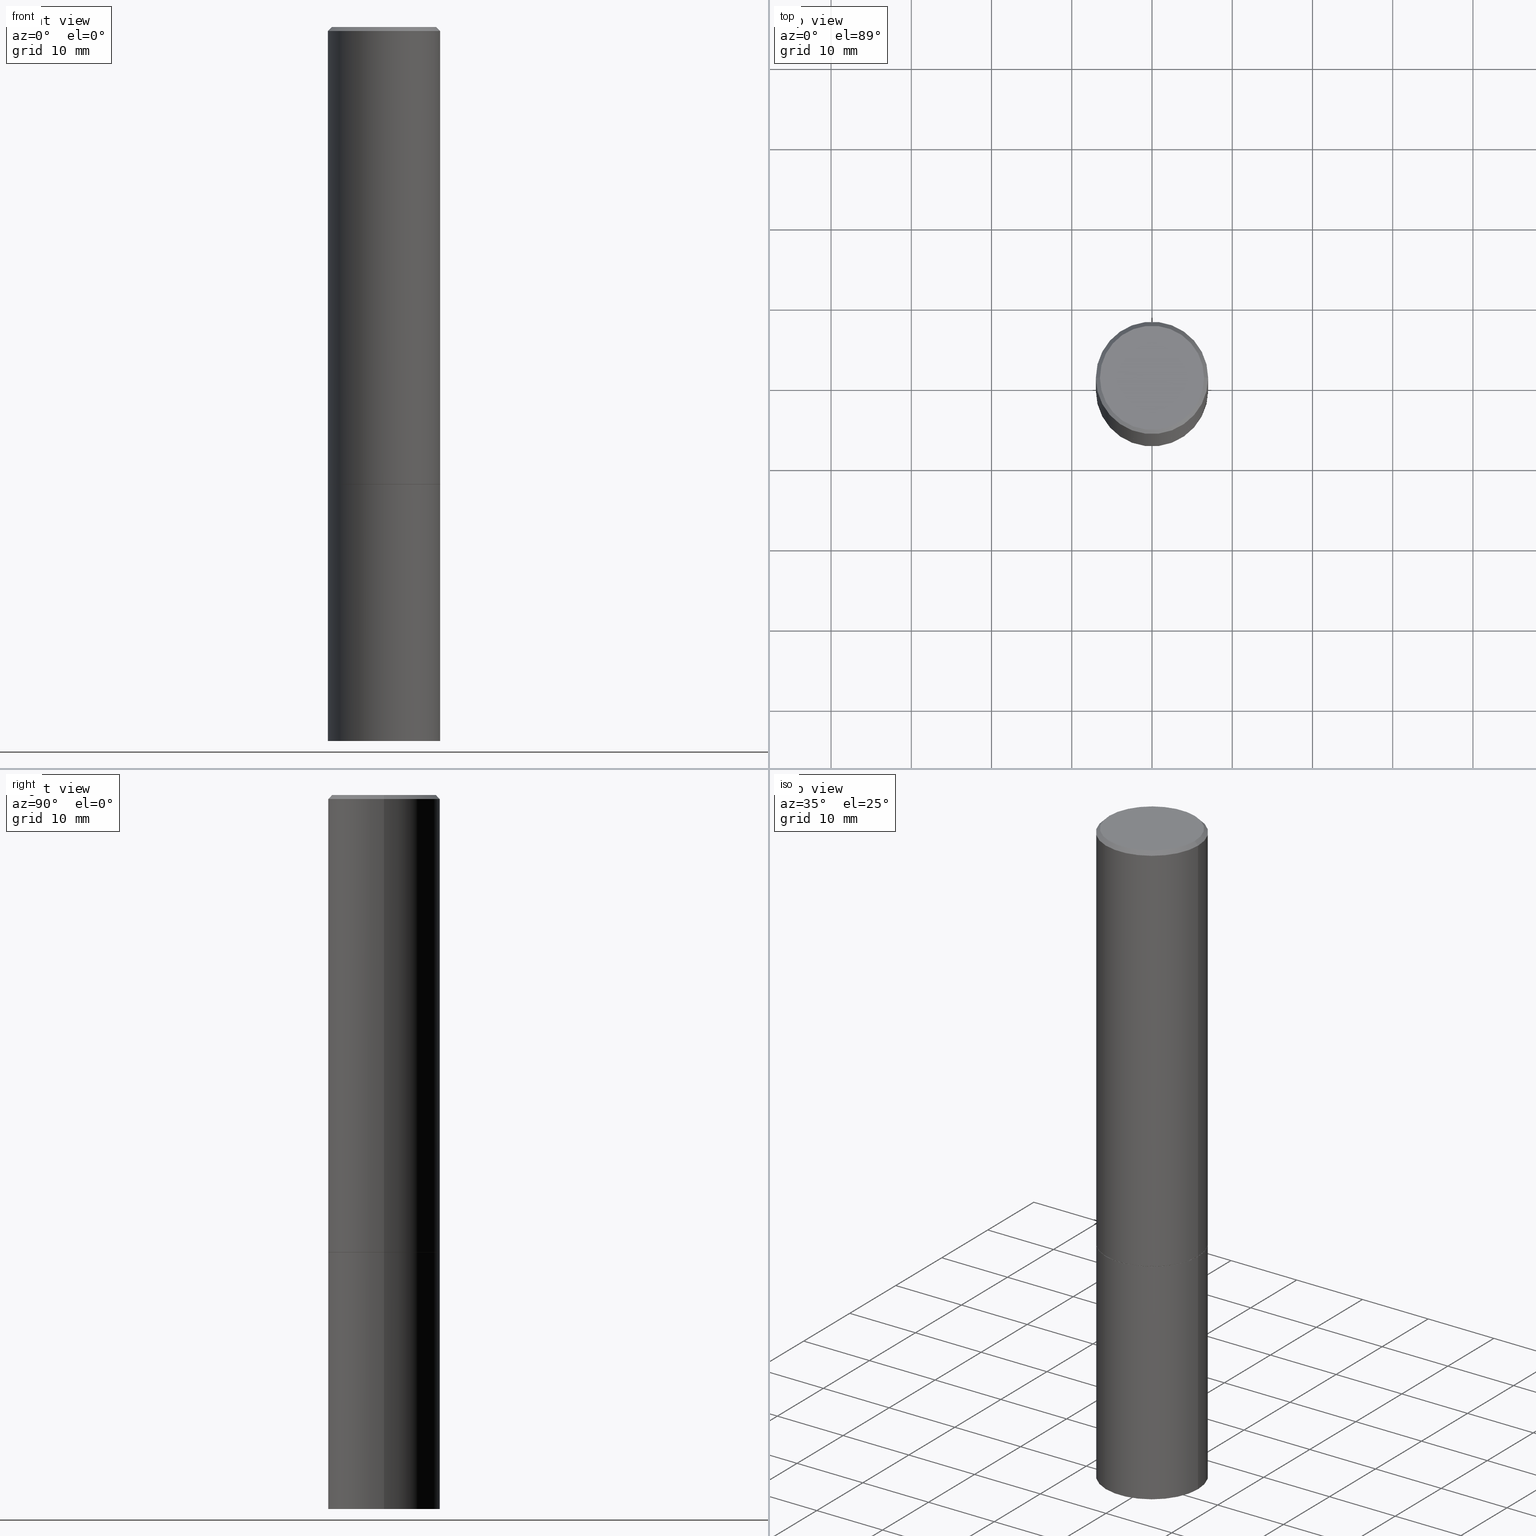
[diagram: canonical four-view strip — front | top / right | iso, engineering-drawing reading convention]
A machine part, canonical four-view strip (front | top / right | iso — engineering-drawing reading convention). The complete STEP part file that produces these views, byte-faithful:
ISO-10303-21;
HEADER;
FILE_DESCRIPTION (( 'STEP AP203' ),
    '1' );
FILE_NAME ('48666.STEP',
    '2024-02-28T13:25:30',
    ( '' ),
    ( '' ),
    'SwSTEP 2.0',
    'SolidWorks 2023',
    '' );
FILE_SCHEMA (( 'CONFIG_CONTROL_DESIGN' ));
ENDSEC;

DATA;
#1 = AXIS2_PLACEMENT_3D ( 'NONE', #223, #328, #361 ) ;
#2 = ADVANCED_FACE ( 'NONE', ( #219 ), #320, .T. ) ;
#3 = DIRECTION ( 'NONE',  ( 1.000000000000000000, -6.982962677686267499E-15, 4.876176775795935793E-29 ) ) ;
#4 = CARTESIAN_POINT ( 'NONE',  ( 0.2755999999999997896, -1.960582874962695828E-15, -0.02000000000000005940 ) ) ;
#5 = ORIENTED_EDGE ( 'NONE', *, *, #233, .T. ) ;
#6 = DIRECTION ( 'NONE',  ( 1.000000000000000000, 0.000000000000000000, 0.000000000000000000 ) ) ;
#7 = CIRCLE ( 'NONE', #258, 0.2555999999999997163 ) ;
#8 = FACE_OUTER_BOUND ( 'NONE', #187, .T. ) ;
#9 = DIRECTION ( 'NONE',  ( -1.000000000000000000, 6.982962677686267499E-15, 0.000000000000000000 ) ) ;
#10 = DIRECTION ( 'NONE',  ( -2.445468806185136597E-29, 3.491481338843145583E-15, 1.000000000000000000 ) ) ;
#11 = DIRECTION ( 'NONE',  ( 1.000000000000000000, -6.982962677686267499E-15, 4.876201967404967742E-29 ) ) ;
#12 = ORIENTED_EDGE ( 'NONE', *, *, #26, .T. ) ;
#13 = APPROVAL_STATUS ( 'not_yet_approved' ) ;
#14 = CARTESIAN_POINT ( 'NONE',  ( 0.000000000000000000, 0.000000000000000000, 0.000000000000000000 ) ) ;
#15 = ORIENTED_EDGE ( 'NONE', *, *, #141, .F. ) ;
#16 = DIRECTION ( 'NONE',  ( 1.000000000000000000, -6.982962677686267499E-15, 4.876176775795935793E-29 ) ) ;
#17 = ORIENTED_EDGE ( 'NONE', *, *, #103, .F. ) ;
#18 = DIRECTION ( 'NONE',  ( -2.445468806185136597E-29, 3.491481338843145583E-15, 1.000000000000000000 ) ) ;
#19 = ORIENTED_EDGE ( 'NONE', *, *, #247, .T. ) ;
#20 = CALENDAR_DATE ( 2024, 28, 2 ) ;
#21 = CC_DESIGN_APPROVAL ( #134, ( #334 ) ) ;
#22 = PERSON_AND_ORGANIZATION ( #196, #34 ) ;
#23 = DIRECTION ( 'NONE',  ( -2.445468806185136597E-29, 3.491481338843145583E-15, 1.000000000000000000 ) ) ;
#24 = APPLICATION_CONTEXT ( 'configuration controlled 3d designs of mechanical parts and assemblies' ) ;
#25 = CIRCLE ( 'NONE', #275, 0.2756000000000000116 ) ;
#26 = EDGE_CURVE ( 'NONE', #65, #71, #142, .T. ) ;
#27 = AXIS2_PLACEMENT_3D ( 'NONE', #246, #148, #87 ) ;
#28 = CARTESIAN_POINT ( 'NONE',  ( 0.2746000000000000107, -9.752754823790549702E-15, -2.244099999999999540 ) ) ;
#29 = CARTESIAN_POINT ( 'NONE',  ( 1.924504513970420545E-15, 0.2755999999999877992, -3.503900000000000681 ) ) ;
#30 = CARTESIAN_POINT ( 'NONE',  ( 5.487876547960063631E-29, -7.835233272497900762E-15, -2.244099999999999540 ) ) ;
#31 = DIRECTION ( 'NONE',  ( 1.000000000000000000, -6.982962677686267499E-15, 4.876201967404967742E-29 ) ) ;
#32 = CARTESIAN_POINT ( 'NONE',  ( 5.487876547960063631E-29, -7.835233272497900762E-15, -2.244099999999999540 ) ) ;
#33 = CARTESIAN_POINT ( 'NONE',  ( 0.2756000000000000116, -9.759737786468235716E-15, -2.244099999999999540 ) ) ;
#34 = ORGANIZATION ( 'UNSPECIFIED', 'UNSPECIFIED', '' ) ;
#35 = CARTESIAN_POINT ( 'NONE',  ( 0.000000000000000000, 0.000000000000000000, 0.000000000000000000 ) ) ;
#36 =( NAMED_UNIT ( * ) PLANE_ANGLE_UNIT ( ) SI_UNIT ( $, .RADIAN. ) );
#37 = CARTESIAN_POINT ( 'NONE',  ( -0.2755999999999997896, 1.854674887193470472E-15, -0.02000000000000005940 ) ) ;
#38 = ORIENTED_EDGE ( 'NONE', *, *, #350, .F. ) ;
#39 = EDGE_CURVE ( 'NONE', #295, #97, #199, .T. ) ;
#40 = VERTEX_POINT ( 'NONE', #121 ) ;
#41 = APPROVAL_STATUS ( 'not_yet_approved' ) ;
#42 = CIRCLE ( 'NONE', #1, 0.2755999999999997896 ) ;
#43 = ORIENTED_EDGE ( 'NONE', *, *, #254, .T. ) ;
#44 = CALENDAR_DATE ( 2024, 28, 2 ) ;
#45 = EDGE_LOOP ( 'NONE', ( #221, #329 ) ) ;
#46 = DATE_TIME_ROLE ( 'creation_date' ) ;
#47 = CARTESIAN_POINT ( 'NONE',  ( 0.2755999999999999006, -1.924504513970334560E-15, 1.343874319409359427E-29 ) ) ;
#48 = AXIS2_PLACEMENT_3D ( 'NONE', #73, #358, #107 ) ;
#49 = PRODUCT_RELATED_PRODUCT_CATEGORY ( 'detail', '', ( #156 ) ) ;
#50 = CARTESIAN_POINT ( 'NONE',  ( 8.568678149992099474E-29, -1.223380146317249786E-14, -3.503899999999999793 ) ) ;
#51 = CIRCLE ( 'NONE', #162, 0.2756000000000000116 ) ;
#52 = CIRCLE ( 'NONE', #313, 0.2756000000000000671 ) ;
#53 = AXIS2_PLACEMENT_3D ( 'NONE', #349, #240, #11 ) ;
#54 = PLANE ( 'NONE',  #215 ) ;
#55 = CARTESIAN_POINT ( 'NONE',  ( -0.2756000000000000116, -8.076261588080363510E-15, -3.503899999999999793 ) ) ;
#56 = DIRECTION ( 'NONE',  ( 1.000000000000000000, -6.982962677686265922E-15, 0.000000000000000000 ) ) ;
#57 = EDGE_CURVE ( 'NONE', #40, #155, #52, .T. ) ;
#58 = DIRECTION ( 'NONE',  ( 1.000000000000000000, -6.982962677686267499E-15, 4.876176775795935793E-29 ) ) ;
#59 = DIRECTION ( 'NONE',  ( -2.445468806185136597E-29, 3.491481338843145583E-15, 1.000000000000000000 ) ) ;
#60 = CC_DESIGN_APPROVAL ( #185, ( #78 ) ) ;
#61 = CARTESIAN_POINT ( 'NONE',  ( -0.2555999999999997163, 1.819760073805039218E-15, 8.537024980188219272E-18 ) ) ;
#62 = CC_DESIGN_PERSON_AND_ORGANIZATION_ASSIGNMENT ( #360, #72, ( #334 ) ) ;
#63 = ORIENTED_EDGE ( 'NONE', *, *, #163, .F. ) ;
#64 = CARTESIAN_POINT ( 'NONE',  ( -2.087702828670439639E-46, 2.980686340760894400E-32, 8.537024980200822558E-18 ) ) ;
#65 = VERTEX_POINT ( 'NONE', #61 ) ;
#66 = CARTESIAN_POINT ( 'NONE',  ( -0.2755999999999999006, 1.958255779754835406E-15, -1.355658510874251446E-29 ) ) ;
#67 = EDGE_LOOP ( 'NONE', ( #184, #362, #38, #181 ) ) ;
#68 = APPROVAL_DATE_TIME ( #276, #139 ) ;
#69 = CARTESIAN_POINT ( 'NONE',  ( 0.2555999999999997163, -1.857063081596548453E-15, 8.537024980213556806E-18 ) ) ;
#70 = AXIS2_PLACEMENT_3D ( 'NONE', #213, #319, #180 ) ;
#71 = VERTEX_POINT ( 'NONE', #266 ) ;
#72 = PERSON_AND_ORGANIZATION_ROLE ( 'creator' ) ;
#73 = CARTESIAN_POINT ( 'NONE',  ( 5.485431079153878028E-29, -7.831741791159057755E-15, -2.243099999999999206 ) ) ;
#74 = ADVANCED_FACE ( 'NONE', ( #8 ), #117, .F. ) ;
#75 = ORIENTED_EDGE ( 'NONE', *, *, #232, .T. ) ;
#76 = AXIS2_PLACEMENT_3D ( 'NONE', #30, #172, #204 ) ;
#77 = EDGE_CURVE ( 'NONE', #65, #255, #111, .T. ) ;
#78 = PRODUCT_DEFINITION_FORMATION_WITH_SPECIFIED_SOURCE ( 'ANY', '', #156, .NOT_KNOWN. ) ;
#79 = FACE_OUTER_BOUND ( 'NONE', #248, .T. ) ;
#80 = DIRECTION ( 'NONE',  ( -2.445468806185136597E-29, 3.491481338843145583E-15, 1.000000000000000000 ) ) ;
#81 = LINE ( 'NONE', #229, #206 ) ;
#82 = AXIS2_PLACEMENT_3D ( 'NONE', #14, #23, #16 ) ;
#83 = DIRECTION ( 'NONE',  ( 0.000000000000000000, 0.000000000000000000, 1.000000000000000000 ) ) ;
#84 = DIRECTION ( 'NONE',  ( 2.438088387897960049E-29, -3.491481338843145188E-15, -1.000000000000000000 ) ) ;
#85 = MANIFOLD_SOLID_BREP ( 'Body-Move/Copy2[2]', #282 ) ;
#86 =( LENGTH_UNIT ( ) NAMED_UNIT ( * ) SI_UNIT ( $, .METRE. ) );
#87 = DIRECTION ( 'NONE',  ( 1.000000000000000000, -6.982962677686265922E-15, 0.000000000000000000 ) ) ;
#88 = CARTESIAN_POINT ( 'NONE',  ( 5.487876547960063631E-29, -7.835233272497900762E-15, -2.244099999999999540 ) ) ;
#89 = EDGE_CURVE ( 'NONE', #97, #340, #94, .T. ) ;
#90 = DIRECTION ( 'NONE',  ( 1.000000000000000000, -6.982962677686264344E-15, 0.000000000000000000 ) ) ;
#91 = ORIENTED_EDGE ( 'NONE', *, *, #89, .T. ) ;
#92 = PERSON_AND_ORGANIZATION ( #196, #34 ) ;
#93 = CIRCLE ( 'NONE', #321, 0.2756000000000000116 ) ;
#94 = LINE ( 'NONE', #314, #267 ) ;
#95 = ORIENTED_EDGE ( 'NONE', *, *, #141, .T. ) ;
#96 = APPROVAL_ROLE ( '' ) ;
#97 = VERTEX_POINT ( 'NONE', #271 ) ;
#98 = EDGE_CURVE ( 'NONE', #351, #324, #337, .T. ) ;
#99 = PERSON_AND_ORGANIZATION ( #196, #34 ) ;
#100 = DIRECTION ( 'NONE',  ( 0.7071067811865473507, -7.319954787623256045E-15, -0.7071067811865476838 ) ) ;
#101 = ORIENTED_EDGE ( 'NONE', *, *, #198, .F. ) ;
#102 = APPLICATION_PROTOCOL_DEFINITION ( 'international standard', 'config_control_design', 1994, #24 ) ;
#103 = EDGE_CURVE ( 'NONE', #255, #65, #7, .T. ) ;
#104 = DIRECTION ( 'NONE',  ( -2.445468806185136597E-29, 3.491481338843145583E-15, 1.000000000000000000 ) ) ;
#105 = AXIS2_PLACEMENT_3D ( 'NONE', #286, #348, #208 ) ;
#106 = EDGE_LOOP ( 'NONE', ( #359, #322 ) ) ;
#107 = DIRECTION ( 'NONE',  ( 1.000000000000000000, -6.982962677686264344E-15, 0.000000000000000000 ) ) ;
#108 = EDGE_CURVE ( 'NONE', #324, #351, #145, .T. ) ;
#109 = AXIS2_PLACEMENT_3D ( 'NONE', #212, #244, #260 ) ;
#110 = VECTOR ( 'NONE', #207, 39.37007874015748143 ) ;
#111 = CIRCLE ( 'NONE', #53, 0.2555999999999997163 ) ;
#112 = CARTESIAN_POINT ( 'NONE',  ( -0.2746000000000000107, -5.884082920100665181E-15, -2.244099999999999540 ) ) ;
#113 = CC_DESIGN_PERSON_AND_ORGANIZATION_ASSIGNMENT ( #281, #298, ( #310 ) ) ;
#114 = CARTESIAN_POINT ( 'NONE',  ( 5.485431079153878028E-29, -7.831741791159057755E-15, -2.243099999999999206 ) ) ;
#115 = ORIENTED_EDGE ( 'NONE', *, *, #312, .T. ) ;
#116 = CYLINDRICAL_SURFACE ( 'NONE', #335, 0.2755999999999999006 ) ;
#117 = PLANE ( 'NONE',  #177 ) ;
#118 = CARTESIAN_POINT ( 'NONE',  ( 0.2756000000000000671, -9.756246305129392709E-15, -2.243099999999999206 ) ) ;
#119 = EDGE_LOOP ( 'NONE', ( #5, #357, #268, #272 ) ) ;
#120 = FACE_OUTER_BOUND ( 'NONE', #106, .T. ) ;
#121 = CARTESIAN_POINT ( 'NONE',  ( -0.2756000000000000671, -1.992529929213121965E-15, -2.243099999999999206 ) ) ;
#122 = ADVANCED_FACE ( 'NONE', ( #269 ), #342, .T. ) ;
#123 = VERTEX_POINT ( 'NONE', #4 ) ;
#124 = SHAPE_DEFINITION_REPRESENTATION ( #304, #188 ) ;
#125 = CARTESIAN_POINT ( 'NONE',  ( -0.2756000000000000116, -8.076261588080363510E-15, -2.244099999999999540 ) ) ;
#126 = EDGE_LOOP ( 'NONE', ( #305, #251, #12, #19 ) ) ;
#127 = ORIENTED_EDGE ( 'NONE', *, *, #98, .T. ) ;
#128 = DATE_AND_TIME ( #44, #132 ) ;
#129 = ORIENTED_EDGE ( 'NONE', *, *, #312, .F. ) ;
#130 = COORDINATED_UNIVERSAL_TIME_OFFSET ( 5, 0, .BEHIND. ) ;
#131 = LOCAL_TIME ( 8, 25, 30.00000000000000000, #182 ) ;
#132 = LOCAL_TIME ( 8, 25, 30.00000000000000000, #302 ) ;
#133 = APPROVAL_DATE_TIME ( #273, #185 ) ;
#134 = APPROVAL ( #13, 'UNSPECIFIED' ) ;
#135 = DIRECTION ( 'NONE',  ( 1.000000000000000000, -6.982962677686267499E-15, 0.000000000000000000 ) ) ;
#136 = LOCAL_TIME ( 8, 25, 30.00000000000000000, #222 ) ;
#137 = ADVANCED_FACE ( 'NONE', ( #140 ), #54, .T. ) ;
#138 = CARTESIAN_POINT ( 'NONE',  ( 0.2746000000000000107, -9.752754823790549702E-15, -2.244099999999999540 ) ) ;
#139 = APPROVAL ( #296, 'UNSPECIFIED' ) ;
#140 = FACE_OUTER_BOUND ( 'NONE', #45, .T. ) ;
#141 = EDGE_CURVE ( 'NONE', #227, #340, #51, .T. ) ;
#142 = LINE ( 'NONE', #37, #110 ) ;
#143 = FACE_OUTER_BOUND ( 'NONE', #278, .T. ) ;
#144 = DIRECTION ( 'NONE',  ( -2.445468806185136597E-29, 3.491481338843145583E-15, 1.000000000000000000 ) ) ;
#145 = CIRCLE ( 'NONE', #231, 0.2746000000000000107 ) ;
#146 = DIRECTION ( 'NONE',  ( -2.445468806185136597E-29, 3.491481338843145583E-15, 1.000000000000000000 ) ) ;
#147 = PERSON_AND_ORGANIZATION_ROLE ( 'design_owner' ) ;
#148 = DIRECTION ( 'NONE',  ( -2.445468806185136597E-29, 3.491481338843145583E-15, 1.000000000000000000 ) ) ;
#149 = EDGE_LOOP ( 'NONE', ( #297, #224, #91, #15 ) ) ;
#150 = PERSON_AND_ORGANIZATION ( #196, #34 ) ;
#151 = ORIENTED_EDGE ( 'NONE', *, *, #57, .F. ) ;
#152 = DATE_TIME_ROLE ( 'classification_date' ) ;
#153 =( GEOMETRIC_REPRESENTATION_CONTEXT ( 3 ) GLOBAL_UNCERTAINTY_ASSIGNED_CONTEXT ( ( #347 ) ) GLOBAL_UNIT_ASSIGNED_CONTEXT ( ( #341, #36, #236 ) ) REPRESENTATION_CONTEXT ( 'NONE', 'WORKASPACE' ) );
#154 = ADVANCED_FACE ( 'NONE', ( #175 ), #365, .T. ) ;
#155 = VERTEX_POINT ( 'NONE', #118 ) ;
#156 = PRODUCT ( '48666', '48666', '', ( #179 ) ) ;
#157 = CALENDAR_DATE ( 2024, 28, 2 ) ;
#158 = ORIENTED_EDGE ( 'NONE', *, *, #108, .T. ) ;
#159 = APPROVAL_DATE_TIME ( #128, #134 ) ;
#160 = COORDINATED_UNIVERSAL_TIME_OFFSET ( 5, 0, .BEHIND. ) ;
#161 = DIRECTION ( 'NONE',  ( -2.445468806185136877E-29, 3.491481338843145188E-15, 1.000000000000000000 ) ) ;
#162 = AXIS2_PLACEMENT_3D ( 'NONE', #318, #290, #56 ) ;
#163 = EDGE_CURVE ( 'NONE', #324, #40, #173, .T. ) ;
#164 = APPROVAL_PERSON_ORGANIZATION ( #22, #134, #352 ) ;
#165 = CC_DESIGN_PERSON_AND_ORGANIZATION_ASSIGNMENT ( #92, #330, ( #78 ) ) ;
#166 = ADVANCED_FACE ( 'NONE', ( #289 ), #237, .F. ) ;
#167 = PLANE ( 'NONE',  #76 ) ;
#168 = CLOSED_SHELL ( 'NONE', ( #122, #137, #166, #210 ) ) ;
#169 = VECTOR ( 'NONE', #161, 39.37007874015748143 ) ;
#170 = LINE ( 'NONE', #28, #190 ) ;
#171 = DIRECTION ( 'NONE',  ( -1.000000000000000000, 6.982962677686265922E-15, -4.876176775795935793E-29 ) ) ;
#172 = DIRECTION ( 'NONE',  ( -2.438088387897960049E-29, 3.491481338843145188E-15, 1.000000000000000000 ) ) ;
#173 = LINE ( 'NONE', #112, #311 ) ;
#174 = DIRECTION ( 'NONE',  ( 0.7071067811865474617, -2.468850131082256666E-15, 0.7071067811865474617 ) ) ;
#175 = FACE_OUTER_BOUND ( 'NONE', #332, .T. ) ;
#176 = EDGE_CURVE ( 'NONE', #295, #227, #81, .T. ) ;
#177 = AXIS2_PLACEMENT_3D ( 'NONE', #239, #205, #217 ) ;
#178 = CC_DESIGN_APPROVAL ( #139, ( #310 ) ) ;
#179 = MECHANICAL_CONTEXT ( 'NONE', #265, 'mechanical' ) ;
#180 = DIRECTION ( 'NONE',  ( -1.000000000000000000, 6.982962677686265922E-15, -4.876176775795935793E-29 ) ) ;
#181 = ORIENTED_EDGE ( 'NONE', *, *, #89, .F. ) ;
#182 = COORDINATED_UNIVERSAL_TIME_OFFSET ( 5, 0, .BEHIND. ) ;
#183 = DIRECTION ( 'NONE',  ( -2.445468806185136597E-29, 3.491481338843145583E-15, 1.000000000000000000 ) ) ;
#184 = ORIENTED_EDGE ( 'NONE', *, *, #277, .T. ) ;
#185 = APPROVAL ( #41, 'UNSPECIFIED' ) ;
#186 = APPROVAL_ROLE ( '' ) ;
#187 = EDGE_LOOP ( 'NONE', ( #355, #327 ) ) ;
#188 = ADVANCED_BREP_SHAPE_REPRESENTATION ( '48666', ( #211, #85, #202 ), #153 ) ;
#189 = DIMENSIONAL_EXPONENTS ( 1.000000000000000000, 0.000000000000000000, 0.000000000000000000, 0.000000000000000000, 0.000000000000000000, 0.000000000000000000, 0.000000000000000000 ) ;
#190 = VECTOR ( 'NONE', #174, 39.37007874015748854 ) ;
#191 = CYLINDRICAL_SURFACE ( 'NONE', #285, 0.2755999999999999006 ) ;
#192 = EDGE_LOOP ( 'NONE', ( #63, #158, #115, #151 ) ) ;
#193 = CALENDAR_DATE ( 2024, 28, 2 ) ;
#194 = DIRECTION ( 'NONE',  ( 1.000000000000000000, -6.982962677686267499E-15, 4.876176775795935793E-29 ) ) ;
#195 = ORIENTED_EDGE ( 'NONE', *, *, #233, .F. ) ;
#196 = PERSON ( 'UNSPECIFIED', 'UNSPECIFIED', 'UNSPECIFIED', ('UNSPECIFIED'), ('UNSPECIFIED'), ('UNSPECIFIED') ) ;
#197 = FACE_OUTER_BOUND ( 'NONE', #149, .T. ) ;
#198 = EDGE_CURVE ( 'NONE', #40, #71, #220, .T. ) ;
#199 = CIRCLE ( 'NONE', #27, 0.2756000000000000116 ) ;
#200 = AXIS2_PLACEMENT_3D ( 'NONE', #323, #316, #344 ) ;
#201 = DIRECTION ( 'NONE',  ( -2.445468806185136597E-29, 3.491481338843145583E-15, 1.000000000000000000 ) ) ;
#202 = AXIS2_PLACEMENT_3D ( 'NONE', #238, #83, #6 ) ;
#203 = LOCAL_TIME ( 8, 25, 30.00000000000000000, #130 ) ;
#204 = DIRECTION ( 'NONE',  ( 1.000000000000000000, -6.982962677686265922E-15, 4.876176775795935793E-29 ) ) ;
#205 = DIRECTION ( 'NONE',  ( 2.438088387897960049E-29, -3.491481338843145188E-15, -1.000000000000000000 ) ) ;
#206 = VECTOR ( 'NONE', #256, 39.37007874015748143 ) ;
#207 = DIRECTION ( 'NONE',  ( -0.7071067811865473507, 2.468850131082255088E-15, -0.7071067811865476838 ) ) ;
#208 = DIRECTION ( 'NONE',  ( 1.000000000000000000, -6.982962677686269866E-15, 0.000000000000000000 ) ) ;
#209 = DIRECTION ( 'NONE',  ( 1.000000000000000000, -6.982962677686269866E-15, 0.000000000000000000 ) ) ;
#210 = ADVANCED_FACE ( 'NONE', ( #197 ), #306, .T. ) ;
#211 = MANIFOLD_SOLID_BREP ( 'Body-Move/Copy2[1]', #168 ) ;
#212 = CARTESIAN_POINT ( 'NONE',  ( 4.890937612370288047E-31, -6.982962677686311331E-17, -0.02000000000000005940 ) ) ;
#213 = CARTESIAN_POINT ( 'NONE',  ( 1.924504513970389780E-15, 0.2755999999999921846, -2.244100000000000428 ) ) ;
#214 = ORIENTED_EDGE ( 'NONE', *, *, #247, .F. ) ;
#215 = AXIS2_PLACEMENT_3D ( 'NONE', #29, #84, #171 ) ;
#216 = CALENDAR_DATE ( 2024, 28, 2 ) ;
#217 = DIRECTION ( 'NONE',  ( -1.000000000000000000, 6.982962677686265922E-15, -4.876176775795935793E-29 ) ) ;
#218 = CC_DESIGN_PERSON_AND_ORGANIZATION_ASSIGNMENT ( #241, #147, ( #156 ) ) ;
#219 = FACE_OUTER_BOUND ( 'NONE', #192, .T. ) ;
#220 = LINE ( 'NONE', #66, #287 ) ;
#221 = ORIENTED_EDGE ( 'NONE', *, *, #277, .F. ) ;
#222 = COORDINATED_UNIVERSAL_TIME_OFFSET ( 5, 0, .BEHIND. ) ;
#223 = CARTESIAN_POINT ( 'NONE',  ( 4.890937612370288047E-31, -6.982962677686311331E-17, -0.02000000000000005940 ) ) ;
#224 = ORIENTED_EDGE ( 'NONE', *, *, #39, .T. ) ;
#225 = DATE_AND_TIME ( #157, #234 ) ;
#226 = CARTESIAN_POINT ( 'NONE',  ( 4.890937612370288047E-31, -6.982962677686311331E-17, -0.02000000000000005940 ) ) ;
#227 = VERTEX_POINT ( 'NONE', #125 ) ;
#228 = LINE ( 'NONE', #326, #283 ) ;
#229 = CARTESIAN_POINT ( 'NONE',  ( -0.2756000000000000116, 1.958255779754836195E-15, -1.355658510874252007E-29 ) ) ;
#230 = AXIS2_PLACEMENT_3D ( 'NONE', #294, #146, #353 ) ;
#231 = AXIS2_PLACEMENT_3D ( 'NONE', #32, #346, #209 ) ;
#232 = EDGE_CURVE ( 'NONE', #155, #123, #250, .T. ) ;
#233 = EDGE_CURVE ( 'NONE', #155, #40, #301, .T. ) ;
#234 = LOCAL_TIME ( 8, 25, 30.00000000000000000, #160 ) ;
#235 = EDGE_CURVE ( 'NONE', #255, #123, #228, .T. ) ;
#236 =( NAMED_UNIT ( * ) SI_UNIT ( $, .STERADIAN. ) SOLID_ANGLE_UNIT ( ) );
#237 = PLANE ( 'NONE',  #70 ) ;
#238 = CARTESIAN_POINT ( 'NONE',  ( 0.000000000000000000, 0.000000000000000000, 0.000000000000000000 ) ) ;
#239 = CARTESIAN_POINT ( 'NONE',  ( 1.784845260416607569E-15, 0.2555999999999997163, -8.881541177182066117E-16 ) ) ;
#240 = DIRECTION ( 'NONE',  ( -2.445468806185136597E-29, 3.491481338843145583E-15, 1.000000000000000000 ) ) ;
#241 = PERSON_AND_ORGANIZATION ( #196, #34 ) ;
#242 = DIRECTION ( 'NONE',  ( -0.7071067811865474617, 7.493145998870352582E-15, 0.7071067811865474617 ) ) ;
#243 = ORIENTED_EDGE ( 'NONE', *, *, #26, .F. ) ;
#244 = DIRECTION ( 'NONE',  ( 2.445468806185136597E-29, -3.491481338843145583E-15, -1.000000000000000000 ) ) ;
#245 = CC_DESIGN_PERSON_AND_ORGANIZATION_ASSIGNMENT ( #99, #279, ( #78 ) ) ;
#246 = CARTESIAN_POINT ( 'NONE',  ( 8.568678149992099474E-29, -1.223380146317249786E-14, -3.503899999999999793 ) ) ;
#247 = EDGE_CURVE ( 'NONE', #71, #123, #308, .T. ) ;
#248 = EDGE_LOOP ( 'NONE', ( #127, #274, #195, #129 ) ) ;
#249 = AXIS2_PLACEMENT_3D ( 'NONE', #35, #59, #3 ) ;
#250 = LINE ( 'NONE', #47, #169 ) ;
#251 = ORIENTED_EDGE ( 'NONE', *, *, #77, .F. ) ;
#252 = DIRECTION ( 'NONE',  ( -2.445468806185136877E-29, 3.491481338843145188E-15, 1.000000000000000000 ) ) ;
#253 = ORIENTED_EDGE ( 'NONE', *, *, #57, .T. ) ;
#254 = EDGE_CURVE ( 'NONE', #123, #71, #42, .T. ) ;
#255 = VERTEX_POINT ( 'NONE', #69 ) ;
#256 = DIRECTION ( 'NONE',  ( -2.445468806185136877E-29, 3.491481338843145188E-15, 1.000000000000000000 ) ) ;
#257 = ADVANCED_FACE ( 'NONE', ( #331 ), #191, .T. ) ;
#258 = AXIS2_PLACEMENT_3D ( 'NONE', #64, #183, #31 ) ;
#259 = AXIS2_PLACEMENT_3D ( 'NONE', #226, #18, #135 ) ;
#260 = DIRECTION ( 'NONE',  ( -1.000000000000000000, 6.982962677686267499E-15, 0.000000000000000000 ) ) ;
#261 = CARTESIAN_POINT ( 'NONE',  ( 4.890937612370288047E-31, -6.982962677686311331E-17, -0.02000000000000005940 ) ) ;
#262 = APPLICATION_PROTOCOL_DEFINITION ( 'international standard', 'config_control_design', 1994, #265 ) ;
#263 = DIRECTION ( 'NONE',  ( -2.445468806185136877E-29, 3.491481338843145188E-15, 1.000000000000000000 ) ) ;
#264 = EDGE_LOOP ( 'NONE', ( #300, #95 ) ) ;
#265 = APPLICATION_CONTEXT ( 'configuration controlled 3d designs of mechanical parts and assemblies' ) ;
#266 = CARTESIAN_POINT ( 'NONE',  ( -0.2755999999999997896, 1.854674887193470472E-15, -0.02000000000000005940 ) ) ;
#267 = VECTOR ( 'NONE', #263, 39.37007874015748143 ) ;
#268 = ORIENTED_EDGE ( 'NONE', *, *, #254, .F. ) ;
#269 = FACE_OUTER_BOUND ( 'NONE', #67, .T. ) ;
#270 = CARTESIAN_POINT ( 'NONE',  ( -0.2746000000000000107, -5.878784465752442779E-15, -2.244099999999999540 ) ) ;
#271 = CARTESIAN_POINT ( 'NONE',  ( 0.2756000000000000116, -1.415830597714283281E-14, -3.503899999999999793 ) ) ;
#272 = ORIENTED_EDGE ( 'NONE', *, *, #232, .F. ) ;
#273 = DATE_AND_TIME ( #20, #131 ) ;
#274 = ORIENTED_EDGE ( 'NONE', *, *, #163, .T. ) ;
#275 = AXIS2_PLACEMENT_3D ( 'NONE', #88, #10, #317 ) ;
#276 = DATE_AND_TIME ( #193, #203 ) ;
#277 = EDGE_CURVE ( 'NONE', #97, #295, #93, .T. ) ;
#278 = EDGE_LOOP ( 'NONE', ( #101, #253, #75, #214 ) ) ;
#279 = PERSON_AND_ORGANIZATION_ROLE ( 'creator' ) ;
#280 = ORIENTED_EDGE ( 'NONE', *, *, #235, .T. ) ;
#281 = PERSON_AND_ORGANIZATION ( #196, #34 ) ;
#282 = CLOSED_SHELL ( 'NONE', ( #299, #257, #154, #364, #366, #2, #309, #74 ) ) ;
#283 = VECTOR ( 'NONE', #100, 39.37007874015748143 ) ;
#284 = CC_DESIGN_SECURITY_CLASSIFICATION ( #310, ( #78 ) ) ;
#285 = AXIS2_PLACEMENT_3D ( 'NONE', #303, #104, #194 ) ;
#286 = CARTESIAN_POINT ( 'NONE',  ( 5.487876547960063631E-29, -7.835233272497900762E-15, -2.244099999999999540 ) ) ;
#287 = VECTOR ( 'NONE', #252, 39.37007874015748143 ) ;
#288 = FACE_OUTER_BOUND ( 'NONE', #126, .T. ) ;
#289 = FACE_OUTER_BOUND ( 'NONE', #264, .T. ) ;
#290 = DIRECTION ( 'NONE',  ( -2.445468806185136597E-29, 3.491481338843145583E-15, 1.000000000000000000 ) ) ;
#291 = DIRECTION ( 'NONE',  ( 2.445468806185136597E-29, -3.491481338843145583E-15, -1.000000000000000000 ) ) ;
#292 = APPROVAL_PERSON_ORGANIZATION ( #150, #185, #96 ) ;
#293 = LENGTH_MEASURE_WITH_UNIT ( LENGTH_MEASURE( 0.02539999999999999897 ), #86 );
#294 = CARTESIAN_POINT ( 'NONE',  ( 5.487876547960063631E-29, -7.835233272497900762E-15, -2.244099999999999540 ) ) ;
#295 = VERTEX_POINT ( 'NONE', #55 ) ;
#296 = APPROVAL_STATUS ( 'not_yet_approved' ) ;
#297 = ORIENTED_EDGE ( 'NONE', *, *, #176, .F. ) ;
#298 = PERSON_AND_ORGANIZATION_ROLE ( 'classification_officer' ) ;
#299 = ADVANCED_FACE ( 'NONE', ( #79 ), #336, .T. ) ;
#300 = ORIENTED_EDGE ( 'NONE', *, *, #350, .T. ) ;
#301 = CIRCLE ( 'NONE', #48, 0.2756000000000000671 ) ;
#302 = COORDINATED_UNIVERSAL_TIME_OFFSET ( 5, 0, .BEHIND. ) ;
#303 = CARTESIAN_POINT ( 'NONE',  ( 0.000000000000000000, 0.000000000000000000, 0.000000000000000000 ) ) ;
#304 = PRODUCT_DEFINITION_SHAPE ( 'NONE', 'NONE',  #334 ) ;
#305 = ORIENTED_EDGE ( 'NONE', *, *, #235, .F. ) ;
#306 = CYLINDRICAL_SURFACE ( 'NONE', #82, 0.2756000000000000116 ) ;
#307 = CC_DESIGN_DATE_AND_TIME_ASSIGNMENT ( #225, #46, ( #334 ) ) ;
#308 = CIRCLE ( 'NONE', #259, 0.2755999999999997896 ) ;
#309 = ADVANCED_FACE ( 'NONE', ( #120 ), #167, .F. ) ;
#310 = SECURITY_CLASSIFICATION ( '', '', #333 ) ;
#311 = VECTOR ( 'NONE', #242, 39.37007874015748854 ) ;
#312 = EDGE_CURVE ( 'NONE', #351, #155, #170, .T. ) ;
#313 = AXIS2_PLACEMENT_3D ( 'NONE', #114, #144, #90 ) ;
#314 = CARTESIAN_POINT ( 'NONE',  ( 0.2756000000000000116, -1.924504513970335348E-15, 1.343874319409359987E-29 ) ) ;
#315 = DIRECTION ( 'NONE',  ( 1.000000000000000000, -6.982962677686265922E-15, 0.000000000000000000 ) ) ;
#316 = DIRECTION ( 'NONE',  ( -2.445468806185136597E-29, 3.491481338843145583E-15, 1.000000000000000000 ) ) ;
#317 = DIRECTION ( 'NONE',  ( 1.000000000000000000, -6.982962677686265922E-15, 0.000000000000000000 ) ) ;
#318 = CARTESIAN_POINT ( 'NONE',  ( 5.487876547960063631E-29, -7.835233272497900762E-15, -2.244099999999999540 ) ) ;
#319 = DIRECTION ( 'NONE',  ( 2.438088387897960049E-29, -3.491481338843145188E-15, -1.000000000000000000 ) ) ;
#320 = CONICAL_SURFACE ( 'NONE', #230, 0.2746000000000000107, 0.7853981633974482790 ) ;
#321 = AXIS2_PLACEMENT_3D ( 'NONE', #50, #201, #315 ) ;
#322 = ORIENTED_EDGE ( 'NONE', *, *, #108, .F. ) ;
#323 = CARTESIAN_POINT ( 'NONE',  ( 5.487876547960063631E-29, -7.835233272497900762E-15, -2.244099999999999540 ) ) ;
#324 = VERTEX_POINT ( 'NONE', #270 ) ;
#325 = DATE_AND_TIME ( #216, #136 ) ;
#326 = CARTESIAN_POINT ( 'NONE',  ( 0.2755999999999997896, -1.960582874962695828E-15, -0.02000000000000005940 ) ) ;
#327 = ORIENTED_EDGE ( 'NONE', *, *, #103, .T. ) ;
#328 = DIRECTION ( 'NONE',  ( -2.445468806185136597E-29, 3.491481338843145583E-15, 1.000000000000000000 ) ) ;
#329 = ORIENTED_EDGE ( 'NONE', *, *, #39, .F. ) ;
#330 = PERSON_AND_ORGANIZATION_ROLE ( 'design_supplier' ) ;
#331 = FACE_OUTER_BOUND ( 'NONE', #119, .T. ) ;
#332 = EDGE_LOOP ( 'NONE', ( #17, #280, #43, #243 ) ) ;
#333 = SECURITY_CLASSIFICATION_LEVEL ( 'unclassified' ) ;
#334 = PRODUCT_DEFINITION ( 'UNKNOWN', '', #78, #338 ) ;
#335 = AXIS2_PLACEMENT_3D ( 'NONE', #345, #80, #58 ) ;
#336 = CONICAL_SURFACE ( 'NONE', #105, 0.2746000000000000107, 0.7853981633974482790 ) ;
#337 = CIRCLE ( 'NONE', #200, 0.2746000000000000107 ) ;
#338 = DESIGN_CONTEXT ( 'detailed design', #24, 'design' ) ;
#339 = CC_DESIGN_DATE_AND_TIME_ASSIGNMENT ( #325, #152, ( #310 ) ) ;
#340 = VERTEX_POINT ( 'NONE', #33 ) ;
#341 =( CONVERSION_BASED_UNIT ( 'INCH', #293 ) LENGTH_UNIT ( ) NAMED_UNIT ( #189 ) );
#342 = CYLINDRICAL_SURFACE ( 'NONE', #249, 0.2756000000000000116 ) ;
#343 = AXIS2_PLACEMENT_3D ( 'NONE', #261, #291, #9 ) ;
#344 = DIRECTION ( 'NONE',  ( 1.000000000000000000, -6.982962677686269866E-15, 0.000000000000000000 ) ) ;
#345 = CARTESIAN_POINT ( 'NONE',  ( 0.000000000000000000, 0.000000000000000000, 0.000000000000000000 ) ) ;
#346 = DIRECTION ( 'NONE',  ( -2.445468806185136597E-29, 3.491481338843145583E-15, 1.000000000000000000 ) ) ;
#347 = UNCERTAINTY_MEASURE_WITH_UNIT (LENGTH_MEASURE( 1.000000000000000082E-05 ), #341, 'distance_accuracy_value', 'NONE');
#348 = DIRECTION ( 'NONE',  ( -2.445468806185136597E-29, 3.491481338843145583E-15, 1.000000000000000000 ) ) ;
#349 = CARTESIAN_POINT ( 'NONE',  ( -2.087702828670439639E-46, 2.980686340760894400E-32, 8.537024980200822558E-18 ) ) ;
#350 = EDGE_CURVE ( 'NONE', #340, #227, #25, .T. ) ;
#351 = VERTEX_POINT ( 'NONE', #138 ) ;
#352 = APPROVAL_ROLE ( '' ) ;
#353 = DIRECTION ( 'NONE',  ( 1.000000000000000000, -6.982962677686269866E-15, 0.000000000000000000 ) ) ;
#354 = CONICAL_SURFACE ( 'NONE', #109, 0.2755999999999997896, 0.7853981633974480570 ) ;
#355 = ORIENTED_EDGE ( 'NONE', *, *, #77, .T. ) ;
#356 = PERSON_AND_ORGANIZATION ( #196, #34 ) ;
#357 = ORIENTED_EDGE ( 'NONE', *, *, #198, .T. ) ;
#358 = DIRECTION ( 'NONE',  ( -2.445468806185136597E-29, 3.491481338843145583E-15, 1.000000000000000000 ) ) ;
#359 = ORIENTED_EDGE ( 'NONE', *, *, #98, .F. ) ;
#360 = PERSON_AND_ORGANIZATION ( #196, #34 ) ;
#361 = DIRECTION ( 'NONE',  ( 1.000000000000000000, -6.982962677686267499E-15, 0.000000000000000000 ) ) ;
#362 = ORIENTED_EDGE ( 'NONE', *, *, #176, .T. ) ;
#363 = APPROVAL_PERSON_ORGANIZATION ( #356, #139, #186 ) ;
#364 = ADVANCED_FACE ( 'NONE', ( #288 ), #354, .T. ) ;
#365 = CONICAL_SURFACE ( 'NONE', #343, 0.2755999999999997896, 0.7853981633974480570 ) ;
#366 = ADVANCED_FACE ( 'NONE', ( #143 ), #116, .T. ) ;
ENDSEC;
END-ISO-10303-21;
